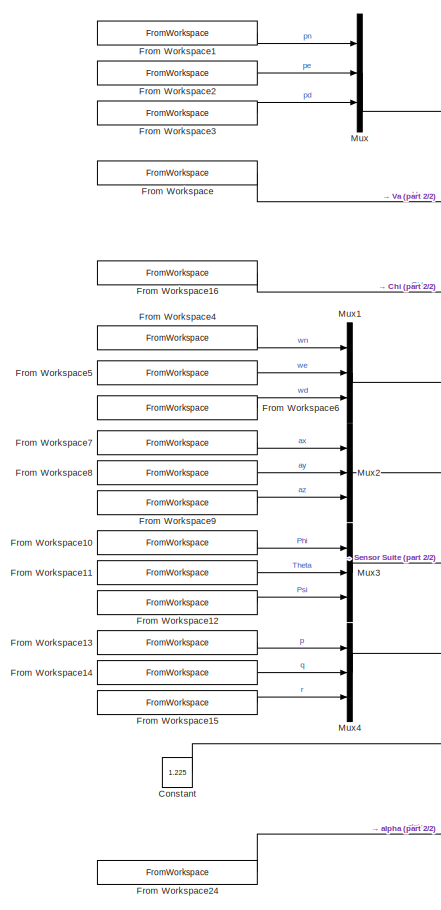
[diagram: root canvas - part 1/2, left side, full height]
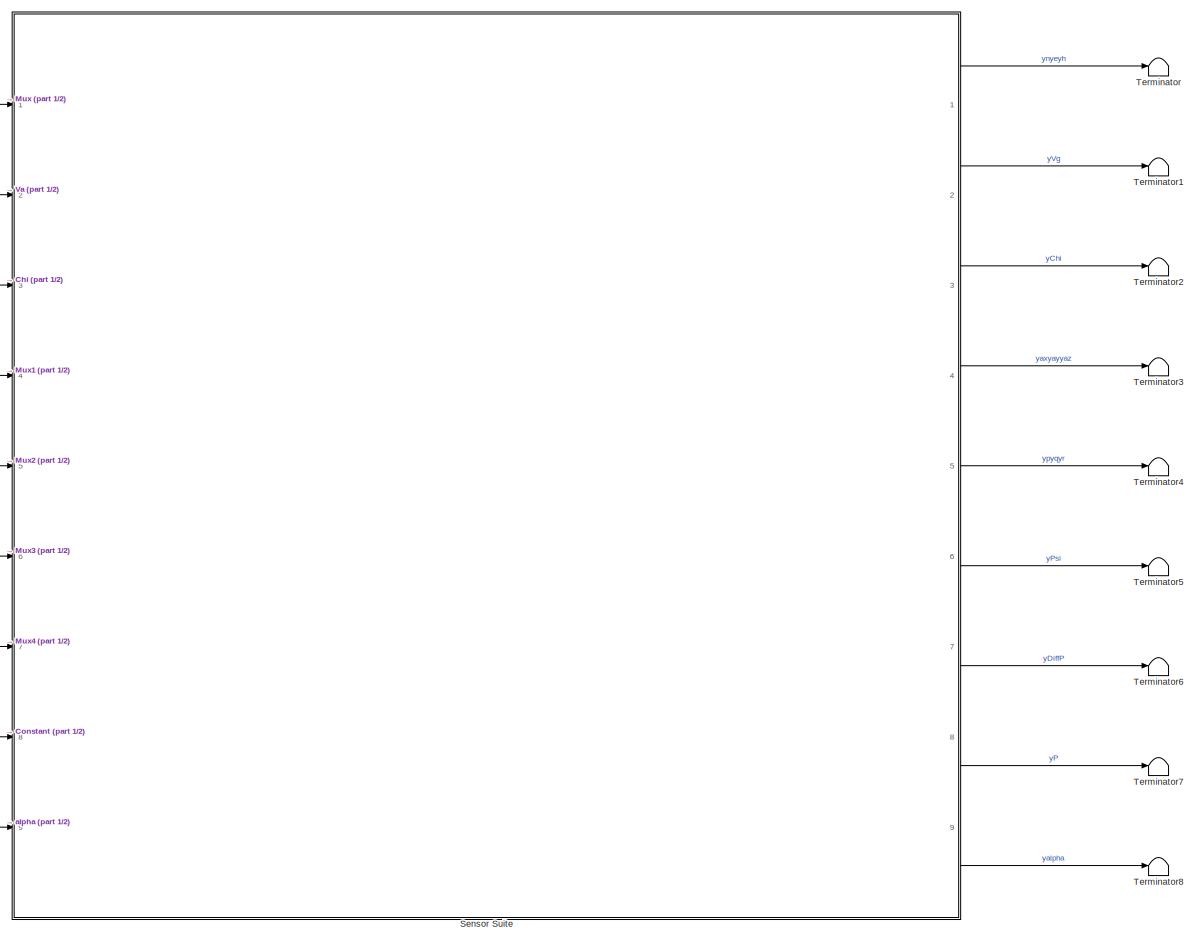
[diagram: root canvas - part 2/2, center side, full height]
MODEL slx_bc0bb97b7d40
KIND model
CONFIG AbsTol = auto
CONFIG EnableMultiTasking = off
CONFIG FixedStep = SkywalkerX8.Sensors.TestProfile.Time(2)/100
CONFIG MaxStep = auto
CONFIG MinStep = auto
CONFIG RelTol = 1e-3
CONFIG SampleTimeConstraint = Unconstrained
CONFIG Solver = FixedStepAuto
CONFIG SolverName = FixedStepAuto
CONFIG StartTime = 0.0
CONFIG StopTime = SkywalkerX8.Sensors.TestProfile.Time(end)
BLOCK [Constant] Constant
  Value = 1.225
BLOCK [FromWorkspace] From Workspace
  Interpolate = off
  OutputAfterFinalValue = Holding final value
  SampleTime = SkywalkerX8.Sensors.TestProfile.Time(2)
  VariableName = SkywalkerX8.Sensors.TestProfile.Va
  ZeroCross = on
BLOCK [FromWorkspace] From Workspace1
  Interpolate = off
  OutputAfterFinalValue = Holding final value
  SampleTime = SkywalkerX8.Sensors.TestProfile.Time(2)
  VariableName = SkywalkerX8.Sensors.TestProfile.Pn
  ZeroCross = on
BLOCK [FromWorkspace] From Workspace10
  Interpolate = off
  OutputAfterFinalValue = Holding final value
  SampleTime = SkywalkerX8.Sensors.TestProfile.Time(2)
  VariableName = SkywalkerX8.Sensors.TestProfile.Phi
  ZeroCross = on
BLOCK [FromWorkspace] From Workspace11
  Interpolate = off
  OutputAfterFinalValue = Holding final value
  SampleTime = SkywalkerX8.Sensors.TestProfile.Time(2)
  VariableName = SkywalkerX8.Sensors.TestProfile.Theta
  ZeroCross = on
BLOCK [FromWorkspace] From Workspace12
  Interpolate = off
  OutputAfterFinalValue = Holding final value
  SampleTime = SkywalkerX8.Sensors.TestProfile.Time(2)
  VariableName = SkywalkerX8.Sensors.TestProfile.Psi
  ZeroCross = on
BLOCK [FromWorkspace] From Workspace13
  Interpolate = off
  OutputAfterFinalValue = Holding final value
  SampleTime = SkywalkerX8.Sensors.TestProfile.Time(2)
  VariableName = SkywalkerX8.Sensors.TestProfile.p
  ZeroCross = on
BLOCK [FromWorkspace] From Workspace14
  Interpolate = off
  OutputAfterFinalValue = Holding final value
  SampleTime = SkywalkerX8.Sensors.TestProfile.Time(2)
  VariableName = SkywalkerX8.Sensors.TestProfile.q
  ZeroCross = on
BLOCK [FromWorkspace] From Workspace15
  Interpolate = off
  OutputAfterFinalValue = Holding final value
  SampleTime = SkywalkerX8.Sensors.TestProfile.Time(2)
  VariableName = SkywalkerX8.Sensors.TestProfile.r
  ZeroCross = on
BLOCK [FromWorkspace] From Workspace16
  Interpolate = off
  OutputAfterFinalValue = Holding final value
  SampleTime = SkywalkerX8.Sensors.TestProfile.Time(2)
  VariableName = SkywalkerX8.Sensors.TestProfile.Chi
  ZeroCross = on
BLOCK [FromWorkspace] From Workspace2
  Interpolate = off
  OutputAfterFinalValue = Holding final value
  SampleTime = SkywalkerX8.Sensors.TestProfile.Time(2)
  VariableName = SkywalkerX8.Sensors.TestProfile.Pe
  ZeroCross = on
BLOCK [FromWorkspace] From Workspace24
  Interpolate = off
  OutputAfterFinalValue = Holding final value
  SampleTime = SkywalkerX8.Sensors.TestProfile.Time(2)
  VariableName = SkywalkerX8.Sensors.TestProfile.alpha
  ZeroCross = on
BLOCK [FromWorkspace] From Workspace3
  Interpolate = off
  OutputAfterFinalValue = Holding final value
  SampleTime = SkywalkerX8.Sensors.TestProfile.Time(2)
  VariableName = SkywalkerX8.Sensors.TestProfile.Pd
  ZeroCross = on
BLOCK [FromWorkspace] From Workspace4
  Interpolate = off
  OutputAfterFinalValue = Holding final value
  SampleTime = SkywalkerX8.Sensors.TestProfile.Time(2)
  VariableName = SkywalkerX8.Sensors.TestProfile.wn
  ZeroCross = on
BLOCK [FromWorkspace] From Workspace5
  Interpolate = off
  OutputAfterFinalValue = Holding final value
  SampleTime = SkywalkerX8.Sensors.TestProfile.Time(2)
  VariableName = SkywalkerX8.Sensors.TestProfile.we
  ZeroCross = on
BLOCK [FromWorkspace] From Workspace6
  Interpolate = off
  OutputAfterFinalValue = Holding final value
  SampleTime = SkywalkerX8.Sensors.TestProfile.Time(2)
  VariableName = SkywalkerX8.Sensors.TestProfile.wd
  ZeroCross = on
BLOCK [FromWorkspace] From Workspace7
  Interpolate = off
  OutputAfterFinalValue = Holding final value
  SampleTime = SkywalkerX8.Sensors.TestProfile.Time(2)
  VariableName = SkywalkerX8.Sensors.TestProfile.ax
  ZeroCross = on
BLOCK [FromWorkspace] From Workspace8
  Interpolate = off
  OutputAfterFinalValue = Holding final value
  SampleTime = SkywalkerX8.Sensors.TestProfile.Time(2)
  VariableName = SkywalkerX8.Sensors.TestProfile.ay
  ZeroCross = on
BLOCK [FromWorkspace] From Workspace9
  Interpolate = off
  OutputAfterFinalValue = Holding final value
  SampleTime = SkywalkerX8.Sensors.TestProfile.Time(2)
  VariableName = SkywalkerX8.Sensors.TestProfile.az
  ZeroCross = on
BLOCK [Mux] Mux
  DisplayOption = bar
  Inputs = 3
  Ports = [3, 1]
BLOCK [Mux] Mux1
  DisplayOption = bar
  Inputs = 3
  Ports = [3, 1]
BLOCK [Mux] Mux2
  DisplayOption = bar
  Inputs = 3
  Ports = [3, 1]
BLOCK [Mux] Mux3
  DisplayOption = bar
  Inputs = 3
  Ports = [3, 1]
BLOCK [Mux] Mux4
  DisplayOption = bar
  Inputs = 3
  Ports = [3, 1]
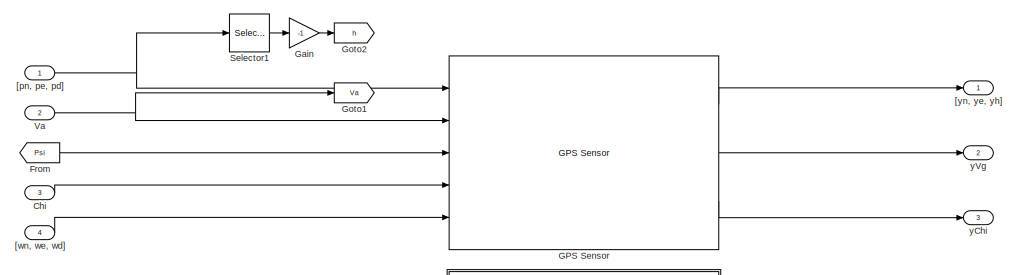
[diagram: Sensor Suite - part 1/2, full width, top band]
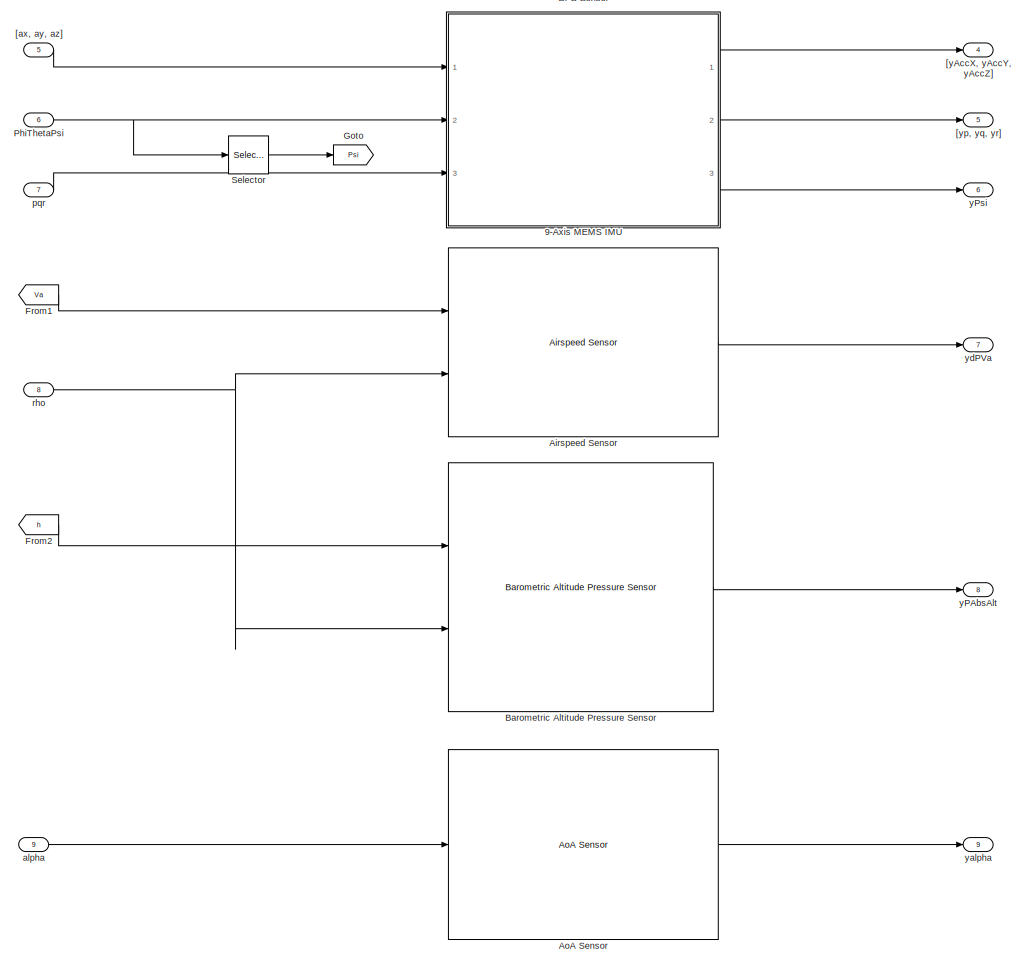
[diagram: Sensor Suite - part 2/2, most of the canvas]
BLOCK [SubSystem] Sensor Suite
  Ports = [9, 9]
  RequestExecContextInheritance = off
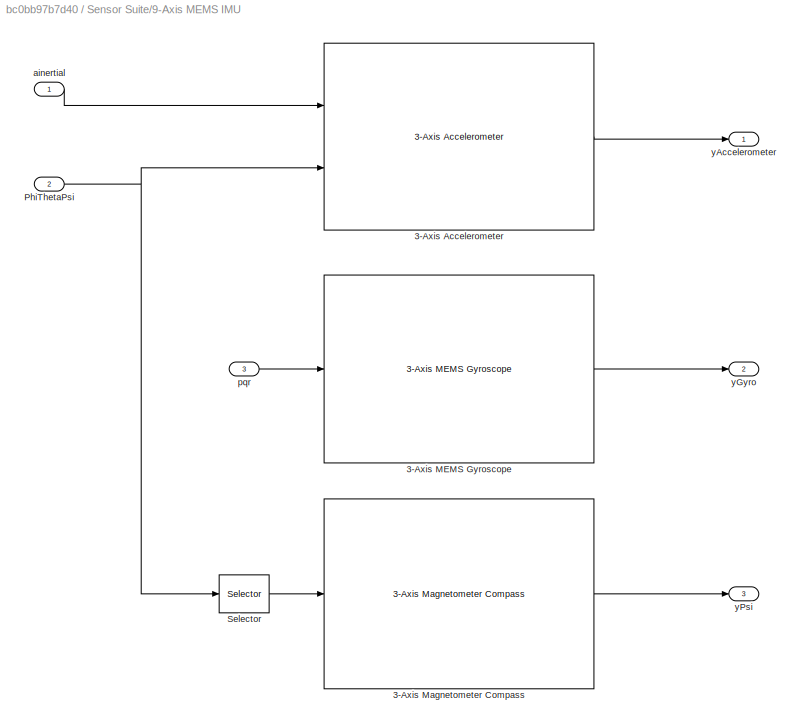
BLOCK [SubSystem] Sensor Suite/9-Axis MEMS IMU
  Ports = [3, 3]
  RequestExecContextInheritance = off
BLOCK [Reference] Sensor Suite/9-Axis MEMS IMU/3-Axis Accelerometer  REF=sensors/3-Axis Accelerometer  (lib defined in slx_03e243f1d19c, slx_0ec61ea8f7b5, +8 more)
  Ports = [2, 1]
  SourceBlock = sensors/3-Axis Accelerometer
BLOCK [Reference] Sensor Suite/9-Axis MEMS IMU/3-Axis MEMS Gyroscope  REF=sensors/3-Axis MEMS Gyroscope  (lib defined in slx_03e243f1d19c, slx_0ec61ea8f7b5, +8 more)
  Ports = [1, 1]
  SourceBlock = sensors/3-Axis MEMS Gyroscope
BLOCK [Reference] Sensor Suite/9-Axis MEMS IMU/3-Axis Magnetometer Compass  REF=sensors/3-Axis Magnetometer Compass  (lib defined in slx_03e243f1d19c, slx_0ec61ea8f7b5, +8 more)
  Ports = [1, 1]
  SourceBlock = sensors/3-Axis Magnetometer Compass
BLOCK [Inport] Sensor Suite/9-Axis MEMS IMU/PhiThetaPsi
  IconDisplay = Port number
  Port = 2
BLOCK [Selector] Sensor Suite/9-Axis MEMS IMU/Selector
  IndexOptions = Index vector (dialog)
  Indices = 3
  InputPortWidth = 3
  OutputSizes = 1
  Ports = [1, 1]
BLOCK [Inport] Sensor Suite/9-Axis MEMS IMU/ainertial
  IconDisplay = Port number
BLOCK [Inport] Sensor Suite/9-Axis MEMS IMU/pqr
  IconDisplay = Port number
  Port = 3
BLOCK [Outport] Sensor Suite/9-Axis MEMS IMU/yAccelerometer
  IconDisplay = Port number
BLOCK [Outport] Sensor Suite/9-Axis MEMS IMU/yGyro
  IconDisplay = Port number
  Port = 2
BLOCK [Outport] Sensor Suite/9-Axis MEMS IMU/yPsi
  IconDisplay = Port number
  Port = 3
BLOCK [Reference] Sensor Suite/Airspeed Sensor  REF=sensors/Airspeed Sensor  (lib defined in slx_03e243f1d19c, slx_0ec61ea8f7b5, +8 more)
  Ports = [2, 1]
  SourceBlock = sensors/Airspeed Sensor
BLOCK [Reference] Sensor Suite/AoA Sensor  REF=sensors/AoA Sensor  (lib defined in slx_03e243f1d19c, slx_0ec61ea8f7b5, +8 more)
  Ports = [1, 1]
  SourceBlock = sensors/AoA Sensor
BLOCK [Reference] Sensor Suite/Barometric Altitude Pressure Sensor  REF=sensors/Barometric Altitude Pressure Sensor  (lib defined in slx_03e243f1d19c, slx_0ec61ea8f7b5, +8 more)
  Ports = [2, 1]
  SourceBlock = sensors/Barometric Altitude Pressure Sensor
BLOCK [Inport] Sensor Suite/Chi
  IconDisplay = Port number
  Port = 3
BLOCK [From] Sensor Suite/From
  GotoTag = Psi
BLOCK [From] Sensor Suite/From1
  GotoTag = Va
BLOCK [From] Sensor Suite/From2
  GotoTag = h
BLOCK [Reference] Sensor Suite/GPS Sensor  REF=sensors/GPS Sensor  (lib defined in slx_03e243f1d19c, slx_0ec61ea8f7b5, +8 more)
  Ports = [5, 3]
  SourceBlock = sensors/GPS Sensor
BLOCK [Gain] Sensor Suite/Gain
  Gain = -1
  OutDataTypeStr = Inherit: Inherit via internal rule
  ParamDataTypeStr = Inherit: Inherit via internal rule
  SaturateOnIntegerOverflow = off
BLOCK [Goto] Sensor Suite/Goto
  GotoTag = Psi
BLOCK [Goto] Sensor Suite/Goto1
  GotoTag = Va
BLOCK [Goto] Sensor Suite/Goto2
  GotoTag = h
BLOCK [Inport] Sensor Suite/PhiThetaPsi
  IconDisplay = Port number
  Port = 6
BLOCK [Selector] Sensor Suite/Selector
  IndexOptions = Index vector (dialog)
  Indices = 3
  InputPortWidth = 3
  OutputSizes = 1
  Ports = [1, 1]
BLOCK [Selector] Sensor Suite/Selector1
  IndexOptions = Index vector (dialog)
  Indices = 3
  InputPortWidth = 3
  OutputSizes = 1
  Ports = [1, 1]
BLOCK [Inport] Sensor Suite/Va
  IconDisplay = Port number
  Port = 2
BLOCK [Inport] Sensor Suite/[ax, ay, az]
  IconDisplay = Port number
  Port = 5
BLOCK [Inport] Sensor Suite/[pn, pe, pd]
  IconDisplay = Port number
BLOCK [Inport] Sensor Suite/[wn, we, wd]
  IconDisplay = Port number
  Port = 4
BLOCK [Outport] Sensor Suite/[yAccX, yAccY, yAccZ]
  IconDisplay = Port number
  Port = 4
BLOCK [Outport] Sensor Suite/[yn, ye, yh]
  IconDisplay = Port number
BLOCK [Outport] Sensor Suite/[yp, yq, yr]
  IconDisplay = Port number
  Port = 5
BLOCK [Inport] Sensor Suite/alpha
  IconDisplay = Port number
  Port = 9
BLOCK [Inport] Sensor Suite/pqr
  IconDisplay = Port number
  Port = 7
BLOCK [Inport] Sensor Suite/rho
  IconDisplay = Port number
  Port = 8
BLOCK [Outport] Sensor Suite/yChi
  IconDisplay = Port number
  Port = 3
BLOCK [Outport] Sensor Suite/yPAbsAlt
  IconDisplay = Port number
  Port = 8
BLOCK [Outport] Sensor Suite/yPsi
  IconDisplay = Port number
  Port = 6
BLOCK [Outport] Sensor Suite/yVg
  IconDisplay = Port number
  Port = 2
BLOCK [Outport] Sensor Suite/yalpha
  IconDisplay = Port number
  Port = 9
BLOCK [Outport] Sensor Suite/ydPVa
  IconDisplay = Port number
  Port = 7
BLOCK [Terminator] Terminator
BLOCK [Terminator] Terminator1
BLOCK [Terminator] Terminator2
BLOCK [Terminator] Terminator3
BLOCK [Terminator] Terminator4
BLOCK [Terminator] Terminator5
BLOCK [Terminator] Terminator6
BLOCK [Terminator] Terminator7
BLOCK [Terminator] Terminator8
LINE Constant:1 -> Sensor Suite:8
LINE From Workspace10:1 -> Mux3:1
LINE From Workspace11:1 -> Mux3:2
LINE From Workspace12:1 -> Mux3:3
LINE From Workspace13:1 -> Mux4:1
LINE From Workspace14:1 -> Mux4:2
LINE From Workspace15:1 -> Mux4:3
LINE From Workspace16:1 -> Sensor Suite:3
LINE From Workspace1:1 -> Mux:1
LINE From Workspace24:1 -> Sensor Suite:9
LINE From Workspace2:1 -> Mux:2
LINE From Workspace3:1 -> Mux:3
LINE From Workspace4:1 -> Mux1:1
LINE From Workspace5:1 -> Mux1:2
LINE From Workspace6:1 -> Mux1:3
LINE From Workspace7:1 -> Mux2:1
LINE From Workspace8:1 -> Mux2:2
LINE From Workspace9:1 -> Mux2:3
LINE From Workspace:1 -> Sensor Suite:2
LINE Mux1:1 -> Sensor Suite:4
LINE Mux2:1 -> Sensor Suite:5
LINE Mux3:1 -> Sensor Suite:6
LINE Mux4:1 -> Sensor Suite:7
LINE Mux:1 -> Sensor Suite:1
LINE Sensor Suite/9-Axis MEMS IMU/3-Axis Accelerometer:1 -> Sensor Suite/9-Axis MEMS IMU/yAccelerometer:1
LINE Sensor Suite/9-Axis MEMS IMU/3-Axis MEMS Gyroscope:1 -> Sensor Suite/9-Axis MEMS IMU/yGyro:1
LINE Sensor Suite/9-Axis MEMS IMU/3-Axis Magnetometer Compass:1 -> Sensor Suite/9-Axis MEMS IMU/yPsi:1
NET Sensor Suite/9-Axis MEMS IMU/PhiThetaPsi:1 -> Sensor Suite/9-Axis MEMS IMU/3-Axis Accelerometer:2, Sensor Suite/9-Axis MEMS IMU/Selector:1
LINE Sensor Suite/9-Axis MEMS IMU/Selector:1 -> Sensor Suite/9-Axis MEMS IMU/3-Axis Magnetometer Compass:1
LINE Sensor Suite/9-Axis MEMS IMU/ainertial:1 -> Sensor Suite/9-Axis MEMS IMU/3-Axis Accelerometer:1
LINE Sensor Suite/9-Axis MEMS IMU/pqr:1 -> Sensor Suite/9-Axis MEMS IMU/3-Axis MEMS Gyroscope:1
LINE Sensor Suite/9-Axis MEMS IMU:1 -> Sensor Suite/[yAccX, yAccY, yAccZ]:1
LINE Sensor Suite/9-Axis MEMS IMU:2 -> Sensor Suite/[yp, yq, yr]:1
LINE Sensor Suite/9-Axis MEMS IMU:3 -> Sensor Suite/yPsi:1
LINE Sensor Suite/Airspeed Sensor:1 -> Sensor Suite/ydPVa:1
LINE Sensor Suite/AoA Sensor:1 -> Sensor Suite/yalpha:1
LINE Sensor Suite/Barometric Altitude Pressure Sensor:1 -> Sensor Suite/yPAbsAlt:1
LINE Sensor Suite/Chi:1 -> Sensor Suite/GPS Sensor:4
LINE Sensor Suite/From1:1 -> Sensor Suite/Airspeed Sensor:1
LINE Sensor Suite/From2:1 -> Sensor Suite/Barometric Altitude Pressure Sensor:1
LINE Sensor Suite/From:1 -> Sensor Suite/GPS Sensor:3
LINE Sensor Suite/GPS Sensor:1 -> Sensor Suite/[yn, ye, yh]:1
LINE Sensor Suite/GPS Sensor:2 -> Sensor Suite/yVg:1
LINE Sensor Suite/GPS Sensor:3 -> Sensor Suite/yChi:1
LINE Sensor Suite/Gain:1 -> Sensor Suite/Goto2:1
NET Sensor Suite/PhiThetaPsi:1 -> Sensor Suite/9-Axis MEMS IMU:2, Sensor Suite/Selector:1
LINE Sensor Suite/Selector1:1 -> Sensor Suite/Gain:1
LINE Sensor Suite/Selector:1 -> Sensor Suite/Goto:1
NET Sensor Suite/Va:1 -> Sensor Suite/GPS Sensor:2, Sensor Suite/Goto1:1
LINE Sensor Suite/[ax, ay, az]:1 -> Sensor Suite/9-Axis MEMS IMU:1
NET Sensor Suite/[pn, pe, pd]:1 -> Sensor Suite/GPS Sensor:1, Sensor Suite/Selector1:1
LINE Sensor Suite/[wn, we, wd]:1 -> Sensor Suite/GPS Sensor:5
LINE Sensor Suite/alpha:1 -> Sensor Suite/AoA Sensor:1
LINE Sensor Suite/pqr:1 -> Sensor Suite/9-Axis MEMS IMU:3
NET Sensor Suite/rho:1 -> Sensor Suite/Airspeed Sensor:2, Sensor Suite/Barometric Altitude Pressure Sensor:2
LINE Sensor Suite:1 -> Terminator:1
LINE Sensor Suite:2 -> Terminator1:1
LINE Sensor Suite:3 -> Terminator2:1
LINE Sensor Suite:4 -> Terminator3:1
LINE Sensor Suite:5 -> Terminator4:1
LINE Sensor Suite:6 -> Terminator5:1
LINE Sensor Suite:7 -> Terminator6:1
LINE Sensor Suite:8 -> Terminator7:1
LINE Sensor Suite:9 -> Terminator8:1
note: NET lines group one-source signal fan-out (src -> all destinations, sorted); 1:1 wires keep LINE
